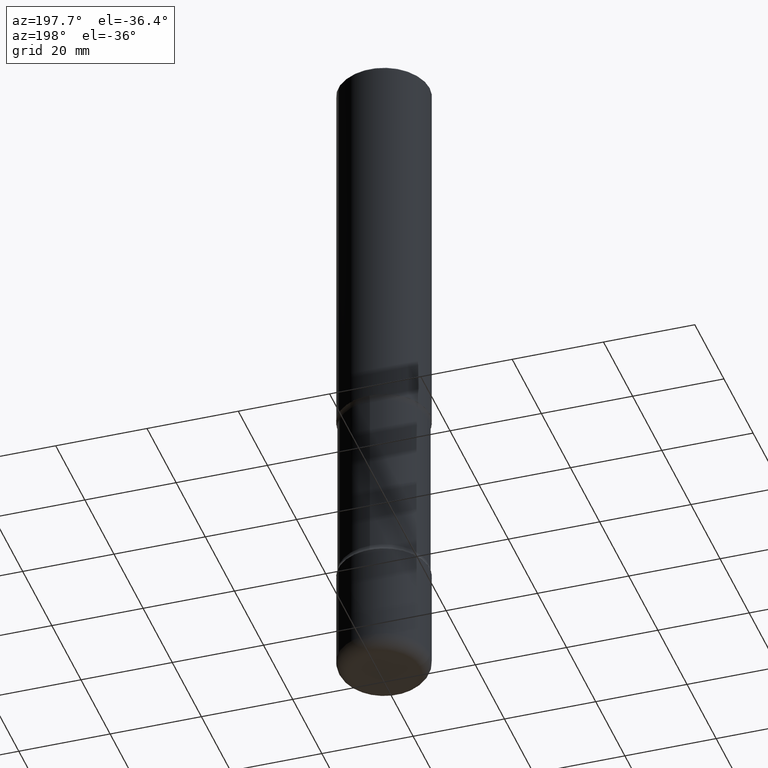
[diagram: clean part render]
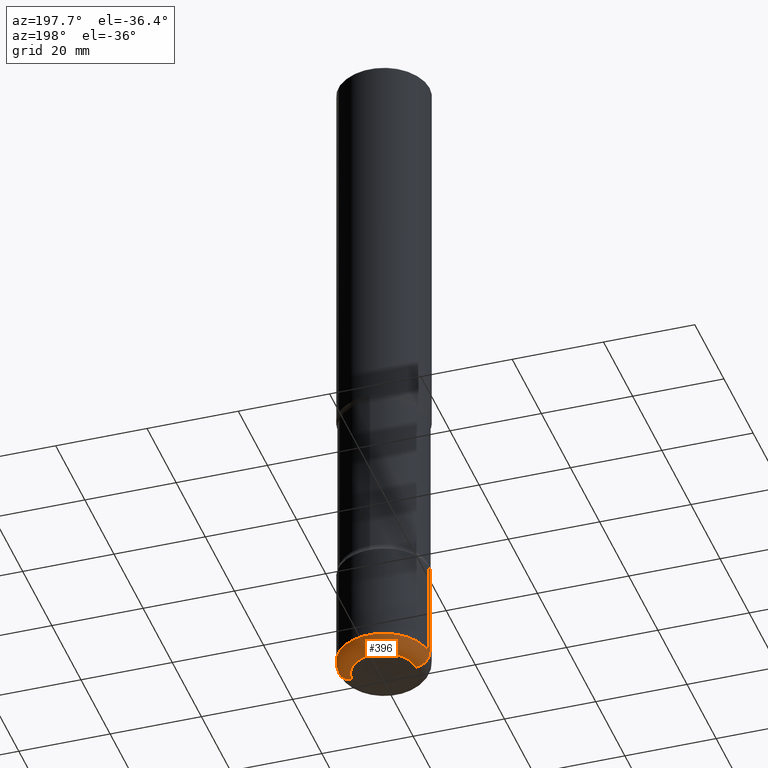
[diagram: same view with one face highlighted and labeled with its STEP entity id]
A machine part, auxiliary view. The second image highlights one B-rep face of the part: STEP entity #396.
In plain terms, the highlighted toroidal blend (fillet) surface has major radius 7.0002 mm and minor (blend) radius 2.9997 mm.
Its self-contained STEP definition (entity closure, byte-faithful):
#12 = ORIENTED_EDGE ( 'NONE', *, *, #279, .F. ) ;
#14 = DIRECTION ( 'NONE',  ( -2.445468806185136597E-29, 3.491481338843145583E-15, 1.000000000000000000 ) ) ;
#21 = VERTEX_POINT ( 'NONE', #380 ) ;
#62 = CARTESIAN_POINT ( 'NONE',  ( 1.415290616891585994E-28, -2.020659910042081941E-14, -5.787399999999999878 ) ) ;
#75 = EDGE_CURVE ( 'NONE', #21, #308, #153, .T. ) ;
#107 = CARTESIAN_POINT ( 'NONE',  ( 1.415290616891585994E-28, -2.020659910042081941E-14, -5.787399999999999878 ) ) ;
#122 = AXIS2_PLACEMENT_3D ( 'NONE', #107, #499, #458 ) ;
#133 = AXIS2_PLACEMENT_3D ( 'NONE', #429, #474, #298 ) ;
#134 = CARTESIAN_POINT ( 'NONE',  ( -0.2756000000000003447, -1.824834332066598125E-14, -5.787399999999999878 ) ) ;
#149 = CARTESIAN_POINT ( 'NONE',  ( -0.3937000000000003830, -1.740919234973330226E-14, -5.787399999999999878 ) ) ;
#153 = CIRCLE ( 'NONE', #470, 0.1181000000000000383 ) ;
#192 = DIRECTION ( 'NONE',  ( 1.000000000000000000, -6.982962677686263555E-15, 0.000000000000000000 ) ) ;
#202 = CIRCLE ( 'NONE', #516, 0.3937000000000002720 ) ;
#218 = ORIENTED_EDGE ( 'NONE', *, *, #476, .T. ) ;
#220 = DIRECTION ( 'NONE',  ( -1.000000000000000000, 7.105427357601001859E-15, 0.000000000000000000 ) ) ;
#224 = DIRECTION ( 'NONE',  ( -6.982962677686266711E-15, -1.000000000000000000, 3.491481338843145583E-15 ) ) ;
#273 = CARTESIAN_POINT ( 'NONE',  ( 0.2756000000000003447, -2.213110361439115752E-14, -5.787399999999999878 ) ) ;
#276 = ORIENTED_EDGE ( 'NONE', *, *, #75, .F. ) ;
#279 = EDGE_CURVE ( 'NONE', #308, #399, #202, .T. ) ;
#293 = EDGE_LOOP ( 'NONE', ( #218, #488, #12, #276 ) ) ;
#298 = DIRECTION ( 'NONE',  ( 1.000000000000000000, -6.982962677686261977E-15, 0.000000000000000000 ) ) ;
#308 = VERTEX_POINT ( 'NONE', #434 ) ;
#309 = DIRECTION ( 'NONE',  ( 7.105427357601001859E-15, 1.000000000000000000, -3.491481338843145583E-15 ) ) ;
#363 = FACE_OUTER_BOUND ( 'NONE', #293, .T. ) ;
#371 = EDGE_CURVE ( 'NONE', #442, #399, #460, .T. ) ;
#380 = CARTESIAN_POINT ( 'NONE',  ( 0.2756000000000001782, -2.254344756050852692E-14, -5.905499999999999972 ) ) ;
#384 = CARTESIAN_POINT ( 'NONE',  ( -0.2756000000000001782, -1.803493980825833276E-14, -5.905499999999999972 ) ) ;
#396 = ADVANCED_FACE ( 'NONE', ( #363 ), #558, .T. ) ;
#399 = VERTEX_POINT ( 'NONE', #149 ) ;
#429 = CARTESIAN_POINT ( 'NONE',  ( 1.444171603492632270E-28, -2.061894304653819197E-14, -5.905499999999999972 ) ) ;
#434 = CARTESIAN_POINT ( 'NONE',  ( 0.3937000000000003830, -2.295579150662590263E-14, -5.787399999999999878 ) ) ;
#442 = VERTEX_POINT ( 'NONE', #384 ) ;
#458 = DIRECTION ( 'NONE',  ( 1.000000000000000000, -6.982962677686261977E-15, 4.883557194083110659E-29 ) ) ;
#460 = CIRCLE ( 'NONE', #484, 0.1181000000000000383 ) ;
#470 = AXIS2_PLACEMENT_3D ( 'NONE', #273, #224, #478 ) ;
#474 = DIRECTION ( 'NONE',  ( -2.445468806185136597E-29, 3.491481338843145583E-15, 1.000000000000000000 ) ) ;
#476 = EDGE_CURVE ( 'NONE', #21, #442, #496, .T. ) ;
#478 = DIRECTION ( 'NONE',  ( 1.000000000000000000, -6.982962677686270655E-15, 0.000000000000000000 ) ) ;
#484 = AXIS2_PLACEMENT_3D ( 'NONE', #134, #309, #220 ) ;
#488 = ORIENTED_EDGE ( 'NONE', *, *, #371, .T. ) ;
#496 = CIRCLE ( 'NONE', #133, 0.2756000000000001782 ) ;
#499 = DIRECTION ( 'NONE',  ( -2.445468806185136597E-29, 3.491481338843145583E-15, 1.000000000000000000 ) ) ;
#516 = AXIS2_PLACEMENT_3D ( 'NONE', #62, #14, #192 ) ;
#558 = TOROIDAL_SURFACE ( 'NONE', #122, 0.2756000000000003447, 0.1180999999999999966 ) ;